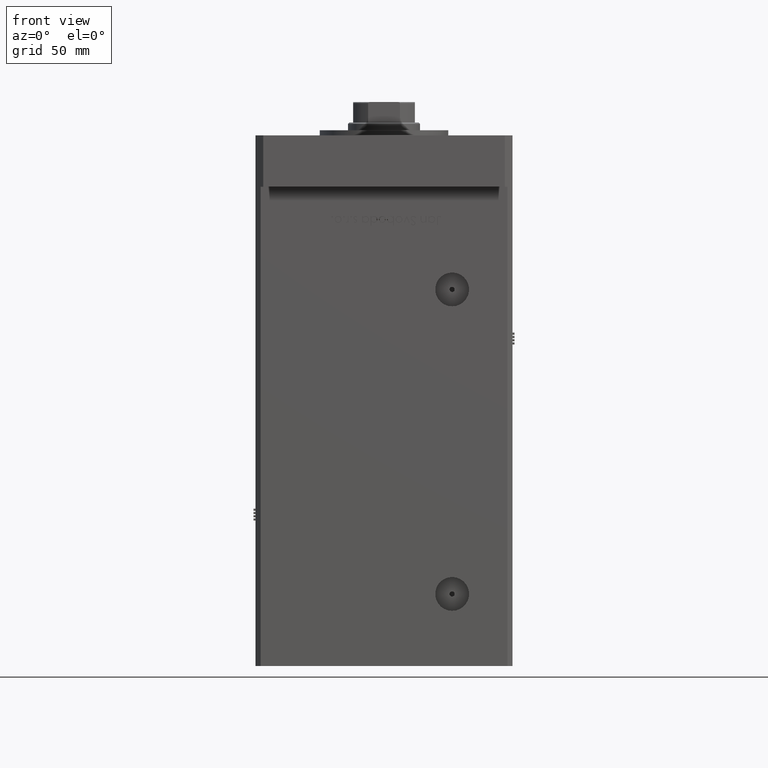
[diagram: clean part render]
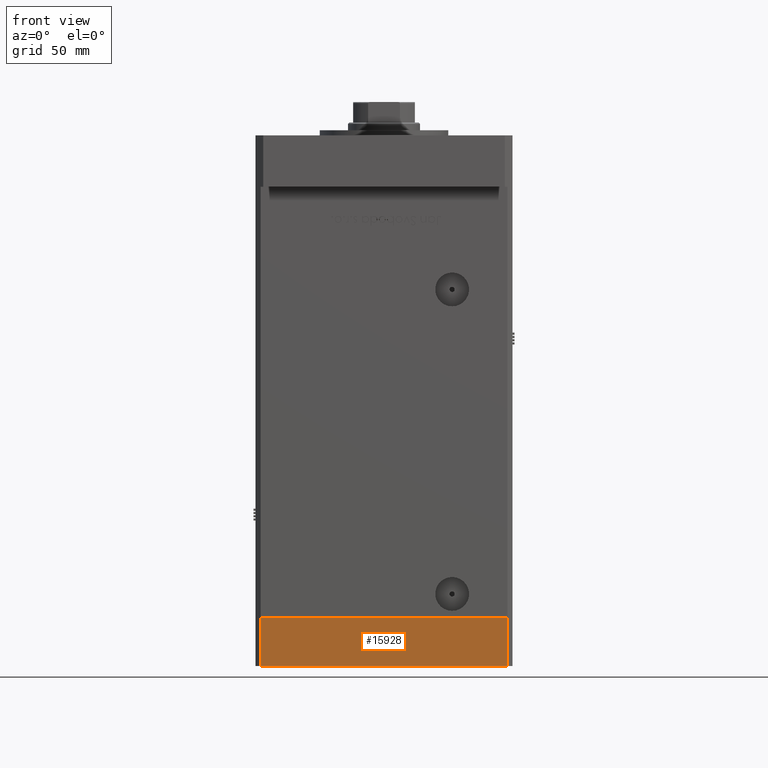
[diagram: same view with one face highlighted and labeled with its STEP entity id]
A machine part, front view. The second image highlights one B-rep face of the part: STEP entity #15928.
In plain terms, the highlighted planar face has unit normal (0, -1, -0).
Its self-contained STEP definition (entity closure, byte-faithful):
#1959 = EDGE_LOOP ( 'NONE', ( #52397, #34457, #47324, #21647 ) ) ;
#3686 = CARTESIAN_POINT ( 'NONE',  ( -47.99999999999999289, -43.50000000000001421, 0.000000000000000000 ) ) ;
#5001 = DIRECTION ( 'NONE',  ( 0.000000000000000000, -1.000000000000000000, 0.000000000000000000 ) ) ;
#6808 = VECTOR ( 'NONE', #23190, 1000.000000000000000 ) ;
#7104 = VERTEX_POINT ( 'NONE', #3686 ) ;
#11326 = LINE ( 'NONE', #37517, #6808 ) ;
#12724 = VECTOR ( 'NONE', #34550, 1000.000000000000000 ) ;
#12786 = CARTESIAN_POINT ( 'NONE',  ( -47.99999999999999289, -43.50000000000001421, -19.00000000000000000 ) ) ;
#14522 = CARTESIAN_POINT ( 'NONE',  ( -47.99999999999999289, -43.50000000000001421, -19.00000000000000000 ) ) ;
#15928 = ADVANCED_FACE ( 'NONE', ( #48806 ), #53982, .T. ) ;
#16153 = LINE ( 'NONE', #55595, #53311 ) ;
#16731 = CARTESIAN_POINT ( 'NONE',  ( 47.99999999999999289, -43.50000000000001421, 0.000000000000000000 ) ) ;
#17007 = LINE ( 'NONE', #55588, #12724 ) ;
#17131 = LINE ( 'NONE', #12786, #25620 ) ;
#18954 = EDGE_CURVE ( 'NONE', #7104, #53652, #17007, .T. ) ;
#20754 = DIRECTION ( 'NONE',  ( 0.000000000000000000, 0.000000000000000000, 1.000000000000000000 ) ) ;
#21647 = ORIENTED_EDGE ( 'NONE', *, *, #53259, .T. ) ;
#23175 = EDGE_CURVE ( 'NONE', #35044, #27878, #17131, .T. ) ;
#23190 = DIRECTION ( 'NONE',  ( 0.000000000000000000, 0.000000000000000000, 1.000000000000000000 ) ) ;
#23432 = CARTESIAN_POINT ( 'NONE',  ( 47.99999999999999289, -43.50000000000001421, -19.00000000000000000 ) ) ;
#25620 = VECTOR ( 'NONE', #34385, 1000.000000000000000 ) ;
#27878 = VERTEX_POINT ( 'NONE', #23432 ) ;
#30945 = DIRECTION ( 'NONE',  ( 0.000000000000000000, -0.000000000000000000, -1.000000000000000000 ) ) ;
#34385 = DIRECTION ( 'NONE',  ( 1.000000000000000000, 0.000000000000000000, 0.000000000000000000 ) ) ;
#34457 = ORIENTED_EDGE ( 'NONE', *, *, #37527, .F. ) ;
#34550 = DIRECTION ( 'NONE',  ( 1.000000000000000000, 0.000000000000000000, 0.000000000000000000 ) ) ;
#35044 = VERTEX_POINT ( 'NONE', #41628 ) ;
#37517 = CARTESIAN_POINT ( 'NONE',  ( 47.99999999999999289, -43.50000000000001421, -19.00000000000000000 ) ) ;
#37527 = EDGE_CURVE ( 'NONE', #35044, #7104, #16153, .T. ) ;
#39271 = AXIS2_PLACEMENT_3D ( 'NONE', #14522, #5001, #30945 ) ;
#41628 = CARTESIAN_POINT ( 'NONE',  ( -47.99999999999999289, -43.50000000000001421, -19.00000000000000000 ) ) ;
#47324 = ORIENTED_EDGE ( 'NONE', *, *, #23175, .T. ) ;
#48806 = FACE_OUTER_BOUND ( 'NONE', #1959, .T. ) ;
#52397 = ORIENTED_EDGE ( 'NONE', *, *, #18954, .F. ) ;
#53259 = EDGE_CURVE ( 'NONE', #27878, #53652, #11326, .T. ) ;
#53311 = VECTOR ( 'NONE', #20754, 1000.000000000000000 ) ;
#53652 = VERTEX_POINT ( 'NONE', #16731 ) ;
#53982 = PLANE ( 'NONE',  #39271 ) ;
#55588 = CARTESIAN_POINT ( 'NONE',  ( -47.99999999999999289, -43.50000000000001421, 0.000000000000000000 ) ) ;
#55595 = CARTESIAN_POINT ( 'NONE',  ( -47.99999999999999289, -43.50000000000001421, -19.00000000000000000 ) ) ;